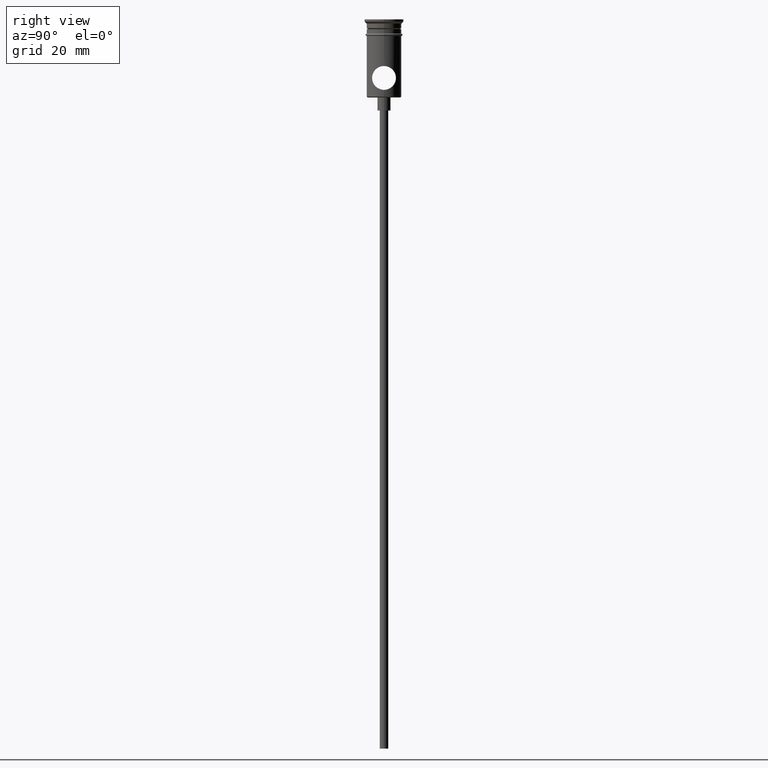
[diagram: clean part render]
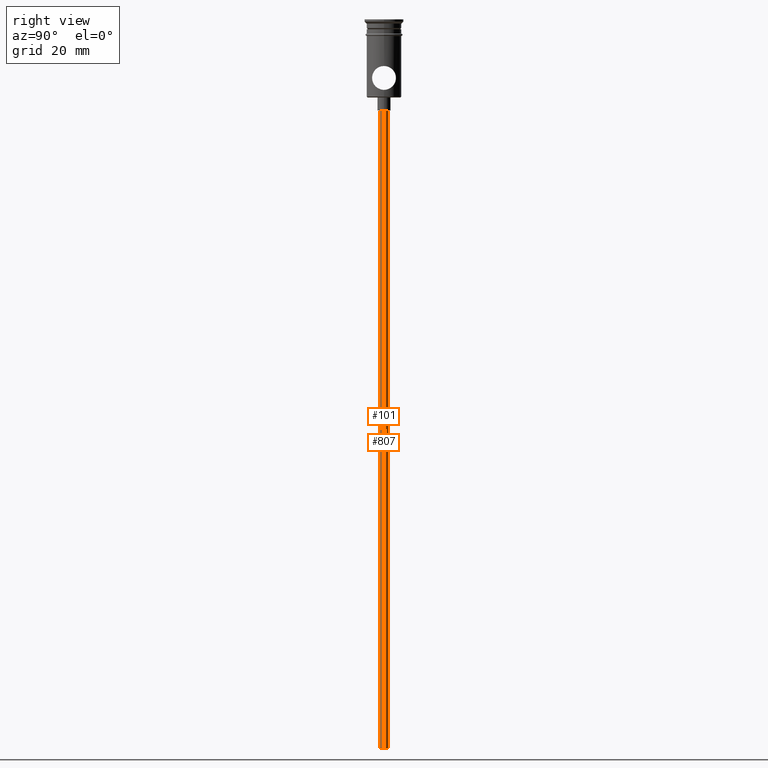
[diagram: same view with one multi-face feature highlighted, each face labeled with its STEP entity id]
A machine part, right view. The highlighted faces form ONE feature: a constant-radius fillet chain: 2 tangent blend faces with common blend radius 1 mm. The faces share edges in the B-rep.
Their STEP definitions:
[1] entity #101 (Cylinder):
#3 = ORIENTED_EDGE ( 'NONE', *, *, #1029, .F. ) ;
#17 = VECTOR ( 'NONE', #468, 1000.000000000000000 ) ;
#18 = FACE_OUTER_BOUND ( 'NONE', #451, .T. ) ;
#35 = LINE ( 'NONE', #361, #17 ) ;
#77 = CIRCLE ( 'NONE', #1198, 0.9999999999999997780 ) ;
#83 = ORIENTED_EDGE ( 'NONE', *, *, #349, .T. ) ;
#101 = ADVANCED_FACE ( 'NONE', ( #18 ), #1342, .T. ) ;
#113 = VERTEX_POINT ( 'NONE', #459 ) ;
#157 = CARTESIAN_POINT ( 'NONE',  ( 0.9999999999999997780, 0.000000000000000000, -20.99999999999999645 ) ) ;
#250 = AXIS2_PLACEMENT_3D ( 'NONE', #540, #896, #1099 ) ;
#272 = VERTEX_POINT ( 'NONE', #1180 ) ;
#287 = VERTEX_POINT ( 'NONE', #644 ) ;
#318 = DIRECTION ( 'NONE',  ( 0.000000000000000000, 0.000000000000000000, -1.000000000000000000 ) ) ;
#349 = EDGE_CURVE ( 'NONE', #777, #113, #77, .T. ) ;
#361 = CARTESIAN_POINT ( 'NONE',  ( 0.9999999999999997780, 0.000000000000000000, -167.9999999999999716 ) ) ;
#364 = CARTESIAN_POINT ( 'NONE',  ( 0.000000000000000000, 0.000000000000000000, -167.9999999999999716 ) ) ;
#425 = DIRECTION ( 'NONE',  ( -0.000000000000000000, -0.000000000000000000, 1.000000000000000000 ) ) ;
#451 = EDGE_LOOP ( 'NONE', ( #3, #722, #1232, #83 ) ) ;
#459 = CARTESIAN_POINT ( 'NONE',  ( -0.9999999999999997780, 1.224646799147352961E-16, -20.99999999999999645 ) ) ;
#464 = DIRECTION ( 'NONE',  ( 1.000000000000000000, 0.000000000000000000, 0.000000000000000000 ) ) ;
#468 = DIRECTION ( 'NONE',  ( -0.000000000000000000, -0.000000000000000000, 1.000000000000000000 ) ) ;
#540 = CARTESIAN_POINT ( 'NONE',  ( 0.000000000000000000, 0.000000000000000000, -167.9999999999999716 ) ) ;
#594 = EDGE_CURVE ( 'NONE', #272, #287, #908, .T. ) ;
#644 = CARTESIAN_POINT ( 'NONE',  ( -0.9999999999999997780, 1.224646799147352961E-16, -167.9999999999999716 ) ) ;
#689 = DIRECTION ( 'NONE',  ( -0.000000000000000000, -0.000000000000000000, 1.000000000000000000 ) ) ;
#722 = ORIENTED_EDGE ( 'NONE', *, *, #594, .F. ) ;
#765 = DIRECTION ( 'NONE',  ( -1.000000000000000000, 0.000000000000000000, 0.000000000000000000 ) ) ;
#777 = VERTEX_POINT ( 'NONE', #157 ) ;
#780 = EDGE_CURVE ( 'NONE', #272, #777, #35, .T. ) ;
#887 = LINE ( 'NONE', #1400, #933 ) ;
#896 = DIRECTION ( 'NONE',  ( 0.000000000000000000, 0.000000000000000000, -1.000000000000000000 ) ) ;
#908 = CIRCLE ( 'NONE', #250, 0.9999999999999997780 ) ;
#933 = VECTOR ( 'NONE', #425, 1000.000000000000000 ) ;
#974 = AXIS2_PLACEMENT_3D ( 'NONE', #364, #689, #464 ) ;
#1029 = EDGE_CURVE ( 'NONE', #287, #113, #887, .T. ) ;
#1099 = DIRECTION ( 'NONE',  ( -1.000000000000000000, 0.000000000000000000, 0.000000000000000000 ) ) ;
#1180 = CARTESIAN_POINT ( 'NONE',  ( 0.9999999999999997780, 0.000000000000000000, -167.9999999999999716 ) ) ;
#1198 = AXIS2_PLACEMENT_3D ( 'NONE', #1300, #318, #765 ) ;
#1232 = ORIENTED_EDGE ( 'NONE', *, *, #780, .T. ) ;
#1300 = CARTESIAN_POINT ( 'NONE',  ( 0.000000000000000000, 0.000000000000000000, -20.99999999999999645 ) ) ;
#1342 = CYLINDRICAL_SURFACE ( 'NONE', #974, 0.9999999999999997780 ) ;
#1400 = CARTESIAN_POINT ( 'NONE',  ( -0.9999999999999997780, 1.224646799147352961E-16, -167.9999999999999716 ) ) ;
[2] entity #807 (Cylinder):
#17 = VECTOR ( 'NONE', #468, 1000.000000000000000 ) ;
#35 = LINE ( 'NONE', #361, #17 ) ;
#113 = VERTEX_POINT ( 'NONE', #459 ) ;
#134 = CIRCLE ( 'NONE', #870, 0.9999999999999997780 ) ;
#157 = CARTESIAN_POINT ( 'NONE',  ( 0.9999999999999997780, 0.000000000000000000, -20.99999999999999645 ) ) ;
#159 = ORIENTED_EDGE ( 'NONE', *, *, #780, .F. ) ;
#187 = DIRECTION ( 'NONE',  ( -1.000000000000000000, 0.000000000000000000, 0.000000000000000000 ) ) ;
#258 = ORIENTED_EDGE ( 'NONE', *, *, #1103, .T. ) ;
#272 = VERTEX_POINT ( 'NONE', #1180 ) ;
#287 = VERTEX_POINT ( 'NONE', #644 ) ;
#329 = DIRECTION ( 'NONE',  ( -1.000000000000000000, 0.000000000000000000, 0.000000000000000000 ) ) ;
#344 = EDGE_LOOP ( 'NONE', ( #1283, #647, #258, #159 ) ) ;
#361 = CARTESIAN_POINT ( 'NONE',  ( 0.9999999999999997780, 0.000000000000000000, -167.9999999999999716 ) ) ;
#418 = DIRECTION ( 'NONE',  ( 0.000000000000000000, 0.000000000000000000, -1.000000000000000000 ) ) ;
#425 = DIRECTION ( 'NONE',  ( -0.000000000000000000, -0.000000000000000000, 1.000000000000000000 ) ) ;
#454 = AXIS2_PLACEMENT_3D ( 'NONE', #508, #418, #187 ) ;
#459 = CARTESIAN_POINT ( 'NONE',  ( -0.9999999999999997780, 1.224646799147352961E-16, -20.99999999999999645 ) ) ;
#468 = DIRECTION ( 'NONE',  ( -0.000000000000000000, -0.000000000000000000, 1.000000000000000000 ) ) ;
#508 = CARTESIAN_POINT ( 'NONE',  ( 0.000000000000000000, 0.000000000000000000, -20.99999999999999645 ) ) ;
#539 = CARTESIAN_POINT ( 'NONE',  ( 0.000000000000000000, 0.000000000000000000, -167.9999999999999716 ) ) ;
#605 = CYLINDRICAL_SURFACE ( 'NONE', #819, 0.9999999999999997780 ) ;
#644 = CARTESIAN_POINT ( 'NONE',  ( -0.9999999999999997780, 1.224646799147352961E-16, -167.9999999999999716 ) ) ;
#647 = ORIENTED_EDGE ( 'NONE', *, *, #1029, .T. ) ;
#777 = VERTEX_POINT ( 'NONE', #157 ) ;
#780 = EDGE_CURVE ( 'NONE', #272, #777, #35, .T. ) ;
#807 = ADVANCED_FACE ( 'NONE', ( #1347 ), #605, .T. ) ;
#819 = AXIS2_PLACEMENT_3D ( 'NONE', #1144, #1244, #1122 ) ;
#870 = AXIS2_PLACEMENT_3D ( 'NONE', #539, #881, #329 ) ;
#881 = DIRECTION ( 'NONE',  ( 0.000000000000000000, 0.000000000000000000, -1.000000000000000000 ) ) ;
#887 = LINE ( 'NONE', #1400, #933 ) ;
#933 = VECTOR ( 'NONE', #425, 1000.000000000000000 ) ;
#952 = CIRCLE ( 'NONE', #454, 0.9999999999999997780 ) ;
#1029 = EDGE_CURVE ( 'NONE', #287, #113, #887, .T. ) ;
#1050 = EDGE_CURVE ( 'NONE', #287, #272, #134, .T. ) ;
#1103 = EDGE_CURVE ( 'NONE', #113, #777, #952, .T. ) ;
#1122 = DIRECTION ( 'NONE',  ( 1.000000000000000000, 0.000000000000000000, 0.000000000000000000 ) ) ;
#1144 = CARTESIAN_POINT ( 'NONE',  ( 0.000000000000000000, 0.000000000000000000, -167.9999999999999716 ) ) ;
#1180 = CARTESIAN_POINT ( 'NONE',  ( 0.9999999999999997780, 0.000000000000000000, -167.9999999999999716 ) ) ;
#1244 = DIRECTION ( 'NONE',  ( -0.000000000000000000, -0.000000000000000000, 1.000000000000000000 ) ) ;
#1283 = ORIENTED_EDGE ( 'NONE', *, *, #1050, .F. ) ;
#1347 = FACE_OUTER_BOUND ( 'NONE', #344, .T. ) ;
#1400 = CARTESIAN_POINT ( 'NONE',  ( -0.9999999999999997780, 1.224646799147352961E-16, -167.9999999999999716 ) ) ;